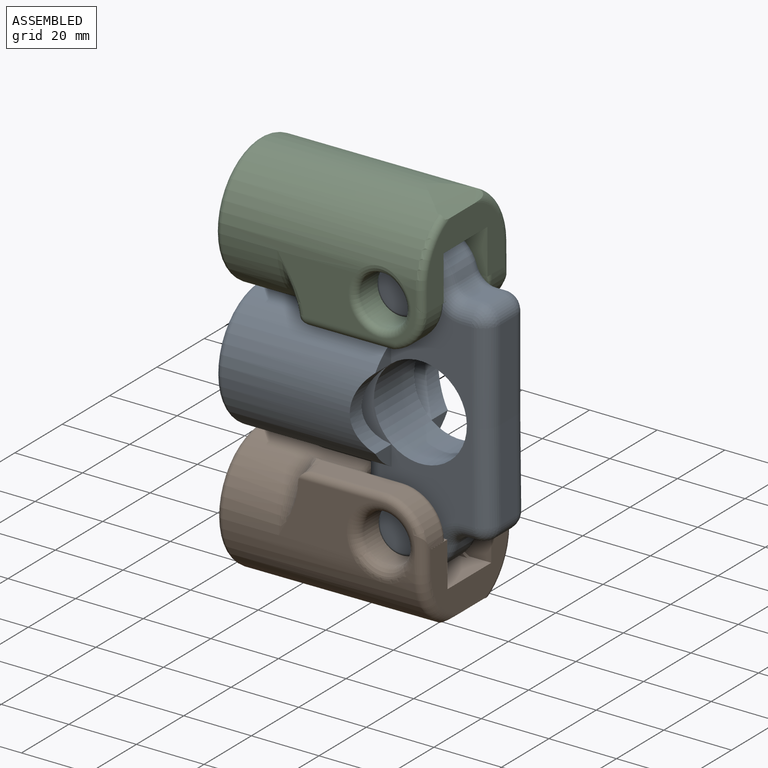
[diagram: assembled view]
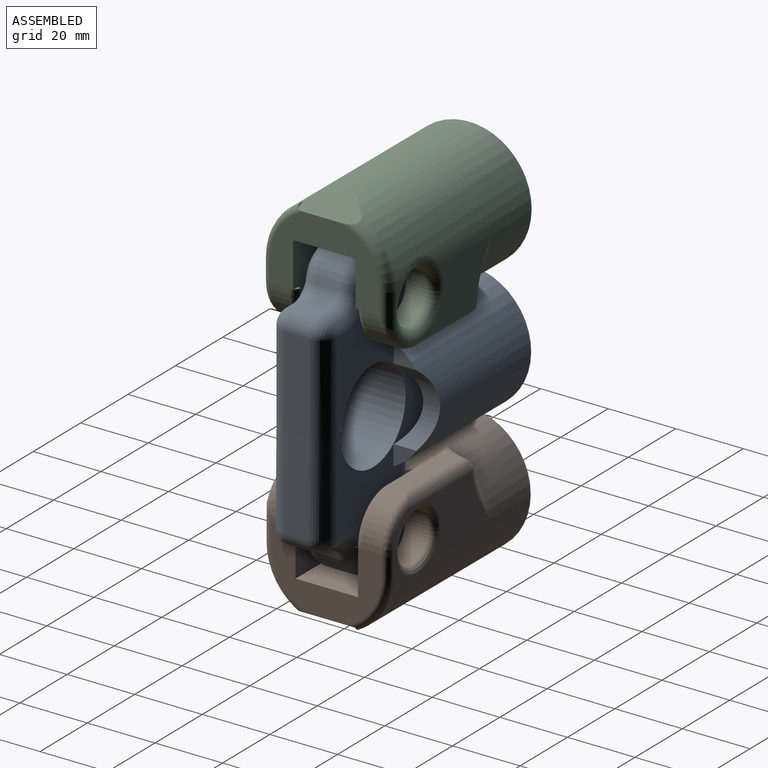
[diagram: assembled view, second angle]
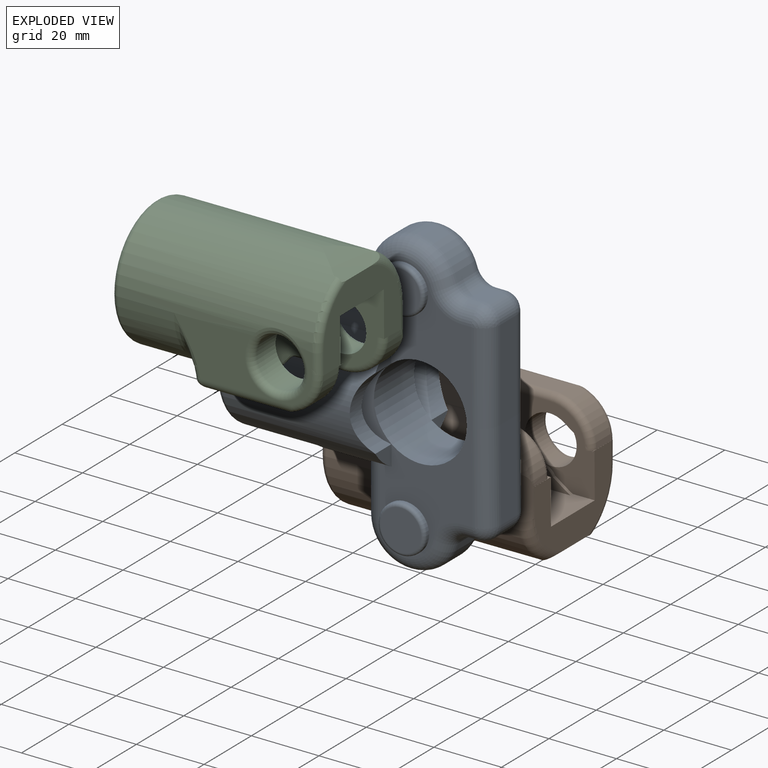
[diagram: exploded view]
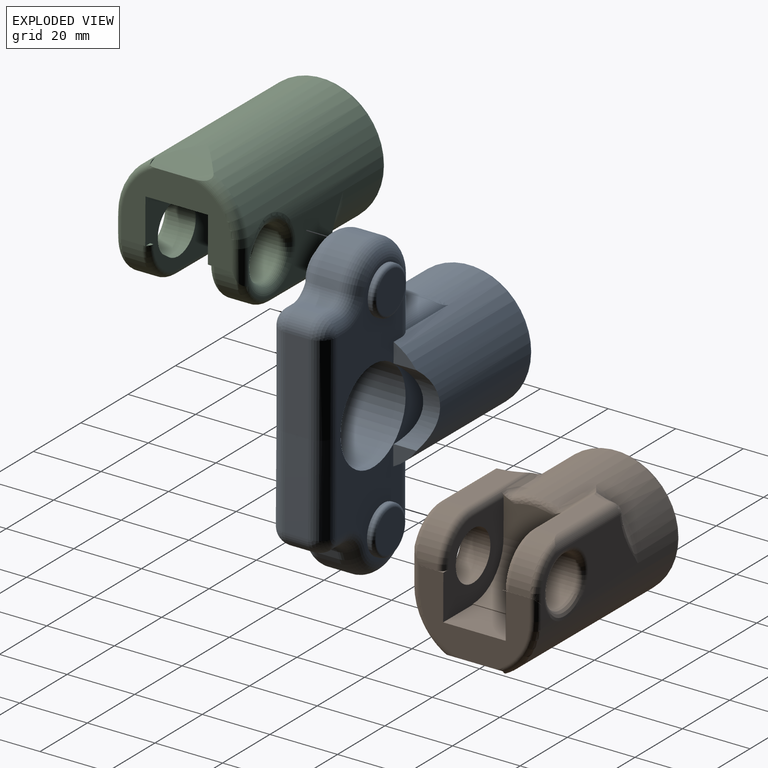
[diagram: exploded view, second angle]
ASSEMBLY  parts=3 mates=2
PART A: 77 faces, bbox 73.9x91.1x40.4 mm
  f0: plane 78.99x37.63mm, normal (0,0,-1), area 1105.5mm2, adj f3,f9,f26,f29,f31,f32,f33,f34
  f1: plane 78.99x37.63mm, normal (0,0,1), area 1105.5mm2, adj f2,f9,f13,f17,f20,f21,f22,f23
  f2: plane 6.71x5.77mm, normal (1,0,0), area 22.5mm2, adj f1,f9,f68
  f3: plane 6.71x5.77mm, normal (1,0,0), area 22.5mm2, adj f0,f9,f68
  f4: cylinder r=12.55mm len=24.63mm, axis (0,0,-1), area 248.1mm2, adj f5,f19,f22,f33
  f5: plane 12.58x6.9mm, normal (-1,0,0), area 86.8mm2, adj f4,f6,f23,f34
  f6: plane 6.9x0.3mm, normal (-1,0,0), area 2.1mm2, adj f5,f7,f25,f36
  f7: plane 11.94x6.96mm, normal (0,1,0), area 82mm2, adj f6,f24,f35,f76
  f8: cylinder r=13.75mm len=21.34mm, axis (0,0,-1), area 83.1mm2, adj f9,f67,f68,f71
  f9: cylinder r=13.75mm len=30.52mm, axis (0,0,-1), area 1463mm2, adj f0,f1,f2,f3,f8,f10,f68
  f10: cylinder r=13.75mm len=21.34mm, axis (0,0,-1), area 83.1mm2, adj f9,f67,f68,f70
  f11: plane 26.7x6.9mm, normal (1,-0.01,0), area 184.3mm2, adj f16,f17,f29,f41
  f12: plane 6.9x3mm, normal (0.01,1,0), area 20.7mm2, adj f16,f19,f20,f31
  f13: cylinder r=7mm len=14mm, axis (0,0,-1), area 44mm2, adj f1,f15
  f14: plane 12x12mm, normal (0,0,1), area 113.1mm2, adj f15
  f15: torus R=6mm, axis (0,0,1), area 65.5mm2, adj f13,f14
  f16: cylinder r=5mm len=6.9mm, axis (0,0,1), area 54.2mm2, adj f11,f12,f18,f30
  f17: cylinder r=5mm len=26.76mm, axis (-0.01,-1,0), area 209.8mm2, adj f1,f11,f18,f47
  f18: sphere r=5mm, area 39.3mm2, adj f16,f17,f20
  f19: cylinder r=5mm len=6.9mm, axis (0,0,-1), area 44.4mm2, adj f4,f12,f21,f32
  f20: cylinder r=5mm len=5.02mm, axis (1,-0.01,0), area 23.5mm2, adj f1,f12,f18,f21
  f21: torus R=10mm, axis (0,0,1), area 69mm2, adj f1,f19,f20,f22
  f22: torus R=7.55mm, axis (0,0,1), area 241.5mm2, adj f1,f4,f21,f23
  f23: cylinder r=5mm len=12.59mm, axis (0,1,0), area 98.8mm2, adj f1,f5,f22,f25
  f24: cylinder r=5mm len=17.74mm, axis (1,0,0), area 63.8mm2, adj f7,f25,f68,f76
  f25: cylinder r=5mm len=5mm, axis (0,1,0), area 12.2mm2, adj f1,f6,f23,f24,f68
  f26: cylinder r=7mm len=14mm, axis (0,0,1), area 44mm2, adj f0,f28
  f27: plane 12x12mm, normal (0,0,-1), area 113.1mm2, adj f28
  f28: torus R=6mm, axis (0,0,-1), area 65.5mm2, adj f26,f27
  f29: cylinder r=5mm len=26.76mm, axis (-0.01,-1,0), area 209.8mm2, adj f0,f11,f30,f59
  f30: sphere r=5mm, area 39.3mm2, adj f16,f29,f31
  f31: cylinder r=5mm len=5.02mm, axis (1,-0.01,0), area 23.5mm2, adj f0,f12,f30,f32
  f32: torus R=10mm, axis (0,0,-1), area 69mm2, adj f0,f19,f31,f33
  f33: torus R=7.55mm, axis (0,0,-1), area 241.5mm2, adj f0,f4,f32,f34
  f34: cylinder r=5mm len=12.59mm, axis (0,1,0), area 98.8mm2, adj f0,f5,f33,f36
  f35: cylinder r=5mm len=17.74mm, axis (1,0,0), area 63.8mm2, adj f7,f36,f68,f76
  f36: cylinder r=5mm len=5mm, axis (0,1,0), area 12.2mm2, adj f0,f6,f34,f35,f68
  f37: cylinder r=12.55mm len=24.63mm, axis (0,0,-1), area 248.1mm2, adj f38,f49,f52,f63
  f38: plane 12.58x6.9mm, normal (-1,0,0), area 86.8mm2, adj f37,f39,f53,f64
  f39: plane 6.9x0.3mm, normal (-1,0,0), area 2.1mm2, adj f38,f40,f55,f66
  f40: plane 11.94x6.96mm, normal (0,-1,0), area 82mm2, adj f39,f54,f65,f75
  f41: plane 26.7x6.9mm, normal (1,0.01,0), area 184.3mm2, adj f11,f46,f47,f59
  f42: plane 6.9x3mm, normal (0.01,-1,0), area 20.7mm2, adj f46,f49,f50,f61
  f43: cylinder r=7mm len=14mm, axis (0,0,-1), area 44mm2, adj f1,f45
  f44: plane 12x12mm, normal (0,0,1), area 113.1mm2, adj f45
  f45: torus R=6mm, axis (0,0,1), area 65.5mm2, adj f43,f44
  f46: cylinder r=5mm len=6.9mm, axis (0,0,1), area 54.2mm2, adj f41,f42,f48,f60
  f47: cylinder r=5mm len=26.76mm, axis (-0.01,1,0), area 209.8mm2, adj f1,f17,f41,f48
  f48: sphere r=5mm, area 39.3mm2, adj f46,f47,f50
  f49: cylinder r=5mm len=6.9mm, axis (0,0,-1), area 44.4mm2, adj f37,f42,f51,f62
  f50: cylinder r=5mm len=5.02mm, axis (1,0.01,0), area 23.5mm2, adj f1,f42,f48,f51
  f51: torus R=10mm, axis (0,0,1), area 69mm2, adj f1,f49,f50,f52
  f52: torus R=7.55mm, axis (0,0,1), area 241.5mm2, adj f1,f37,f51,f53
  f53: cylinder r=5mm len=12.59mm, axis (0,-1,0), area 98.8mm2, adj f1,f38,f52,f55
  f54: cylinder r=5mm len=18.36mm, axis (1,0,0), area 72.1mm2, adj f40,f55,f68,f75
  f55: cylinder r=5mm len=5mm, axis (0,-1,0), area 13mm2, adj f1,f39,f53,f54,f68
  f56: cylinder r=7mm len=14mm, axis (0,0,1), area 44mm2, adj f0,f58
  f57: plane 12x12mm, normal (0,0,-1), area 113.1mm2, adj f58
  f58: torus R=6mm, axis (0,0,-1), area 65.5mm2, adj f56,f57
  f59: cylinder r=5mm len=26.76mm, axis (-0.01,1,0), area 209.8mm2, adj f0,f29,f41,f60
  f60: sphere r=5mm, area 39.3mm2, adj f46,f59,f61
  f61: cylinder r=5mm len=5.02mm, axis (1,0.01,0), area 23.5mm2, adj f0,f42,f60,f62
  f62: torus R=10mm, axis (0,0,-1), area 69mm2, adj f0,f49,f61,f63
  f63: torus R=7.55mm, axis (0,0,-1), area 241.5mm2, adj f0,f37,f62,f64
  f64: cylinder r=5mm len=12.59mm, axis (0,-1,0), area 98.8mm2, adj f0,f38,f63,f66
  f65: cylinder r=5mm len=18.36mm, axis (1,0,0), area 72.1mm2, adj f40,f66,f68,f75
  f66: cylinder r=5mm len=5mm, axis (0,-1,0), area 13mm2, adj f0,f39,f64,f65,f68
  f67: cylinder r=13.65mm len=43mm, axis (1,0,0), area 3017.3mm2, adj f0,f1,f8,f10,f70,f71,f72,f73
  f68: cylinder r=18.65mm len=43mm, axis (1,0,0), area 4144.2mm2, adj f0,f1,f2,f3,f8,f9,f10,f24
  f69: plane 33.3x33.3mm, normal (-1,0,0), area 101.5mm2, adj f73,f74
  f70: plane 6.88x6.01mm, normal (1,0,0), area 24.1mm2, adj f1,f10,f67,f68
  f71: plane 6.88x6.01mm, normal (1,0,0), area 24.1mm2, adj f0,f8,f67,f68
  f72: plane 27.3x16.9mm, normal (-1,0,0), area 429.9mm2, adj f0,f1,f67
  f73: torus R=15.65mm, axis (-1,0,0), area 283.8mm2, adj f67,f69
  f74: torus R=16.65mm, axis (-1,0,0), area 353.8mm2, adj f68,f69
  f75: bspline ~20.72x4.55mm, area 35.1mm2, adj f40,f54,f65,f68
  f76: bspline ~20.04x4.35mm, area 28.3mm2, adj f7,f24,f35,f68
PART B: 71 faces, bbox 63.7x46.5x54.3 mm
  f0: cylinder r=7.3mm len=14.6mm, axis (0,0,-1), area 344mm2, adj f4,f36,f37,f65,f66,f70
  f1: plane 32.5x21.61mm, normal (1,0,0), area 366.5mm2, adj f2,f3,f9,f16,f17,f25,f43,f44
  f2: plane 8x0.3mm, normal (-0.01,-1,0), area 0.4mm2, adj f1,f3,f14,f32,f42,f62,f70
  f3: plane 0.1x0.07mm, normal (0,0,-1), area 0mm2, adj f1,f2,f62
  f4: plane 23.66x23.28mm, normal (0,0,-1), area 228.2mm2, adj f0,f16,f18,f20,f21,f22,f23,f24
  f5: plane 2.31x1.27mm, normal (0,0,-1), area 1.3mm2, adj f10,f56,f57
  f6: cylinder r=7.3mm len=14.6mm, axis (0,0,-1), area 321.1mm2, adj f17,f57,f58
  f7: cylinder r=12.55mm len=12.52mm, axis (0,0,-1), area 116.6mm2, adj f8,f9,f34,f38,f56
  f8: plane 12.55x6mm, normal (0,-1,0), area 75.3mm2, adj f7,f29,f35,f39
  f9: plane 7.41x2.04mm, normal (-0.01,-1,0), area 1.1mm2, adj f1,f7,f17,f34,f56
  f10: cylinder r=18.75mm len=57.45mm, axis (1,0,0), area 4350.6mm2, adj f5,f11,f12,f25,f26,f30,f31,f37
  f11: plane 40.89x15.68mm, normal (0,0,1), area 312.4mm2, adj f10,f36,f40,f41,f42,f43,f51
  f12: plane 39.92x16.73mm, normal (0,0,-1), area 303.9mm2, adj f10,f30,f38,f39,f53,f56,f57
  f13: plane 33.5x33.5mm, normal (-1,0,0), area 102.1mm2, adj f60,f61
  f14: cylinder r=12.55mm len=12.52mm, axis (0,0,-1), area 116.5mm2, adj f2,f15,f32,f41,f51
  f15: plane 12.55x5.41mm, normal (0,-1,0), area 66.2mm2, adj f14,f28,f33,f51
  f16: plane 18.5x12.55mm, normal (0,-1,0), area 226.1mm2, adj f1,f4,f17,f18,f69,f70
  f17: plane 25.43x23.66mm, normal (0,0,1), area 350.2mm2, adj f1,f6,f9,f16,f18,f20,f21,f22
  f18: plane 17.5x0.22mm, normal (1,0,0), area 3.9mm2, adj f4,f16,f17,f24
  f19: cylinder r=13.75mm len=27.5mm, axis (-1,0,0), area 2073.5mm2, adj f59,f60
  f20: cylinder r=12.85mm len=17.5mm, axis (0,0,-1), area 354.5mm2, adj f4,f17,f21,f24
  f21: plane 19.79x13.11mm, normal (1,0,0), area 183mm2, adj f4,f17,f20,f33,f35,f45,f46,f52
  f22: cylinder r=12.55mm len=17.5mm, axis (0,0,-1), area 0.9mm2, adj f4,f17,f23
  f23: plane 17.5x0.05mm, normal (1,0,0), area 0.9mm2, adj f4,f17,f22
  f24: plane 17.5x0mm, normal (0,-1,0), area 0mm2, adj f4,f17,f18,f20
  f25: cylinder r=24.85mm len=17.5mm, axis (0,0,-1), area 137.4mm2, adj f1,f10,f26,f44,f55
  f26: plane 2.34x1.31mm, normal (0,0,-1), area 0.5mm2, adj f10,f25,f44
  f27: plane 23.5x23.5mm, normal (-1,0,0), area 433.7mm2, adj f59
  f28: plane 11.11x5.32mm, normal (0,-1,0), area 52.4mm2, adj f15,f33,f48,f51
  f29: plane 11.11x6.61mm, normal (0,-1,0), area 63.4mm2, adj f8,f35,f39,f53
  f30: torus R=24.54mm, axis (1,0,0), area 108.6mm2, adj f10,f12,f53,f54
  f31: torus R=24.54mm, axis (1,0,0), area 95.5mm2, adj f10,f40,f47,f48,f50
  f32: torus R=10.55mm, axis (0,0,1), area 57.7mm2, adj f2,f4,f14,f33,f63,f64
  f33: cylinder r=2mm len=26.01mm, axis (1,0,0), area 55.2mm2, adj f4,f15,f21,f28,f32,f46,f47,f48
  f34: torus R=10.55mm, axis (0,0,1), area 57.7mm2, adj f7,f9,f17,f35
  f35: cylinder r=2mm len=26.01mm, axis (-1,0,0), area 55.2mm2, adj f8,f17,f21,f29,f34,f52,f53,f54
  f36: torus R=9.3mm, axis (0,0,-1), area 115.3mm2, adj f0,f11,f37
  f37: bspline ~16.26x6.26mm, area 47mm2, adj f0,f10,f36
  f38: torus R=10.55mm, axis (0,0,-1), area 47.5mm2, adj f7,f12,f39,f56
  f39: cylinder r=2mm len=24.37mm, axis (-1,0,0), area 70.2mm2, adj f8,f12,f29,f38,f53
  f40: bspline ~17.21x7.77mm, area 16.6mm2, adj f11,f31,f50
  f41: torus R=10.55mm, axis (0,0,-1), area 50.6mm2, adj f11,f14,f42,f51
  f42: cylinder r=2mm len=2.21mm, axis (1,-0.01,0), area 0.2mm2, adj f2,f11,f41,f43
  f43: cylinder r=2mm len=6.27mm, axis (0,1,0), area 16.5mm2, adj f1,f11,f42,f44
  f44: torus R=16.75mm, axis (1,0,0), area 61.4mm2, adj f1,f10,f25,f26,f43
  f45: bspline ~12.84x2.93mm, area 36.6mm2, adj f10,f21,f46,f52
  f46: bspline ~5.83x3.94mm, area 9.5mm2, adj f21,f33,f45,f47
  f47: bspline ~43.34x3.06mm, area 42.8mm2, adj f10,f31,f33,f46,f48
  f48: bspline ~10.87x5.47mm, area 24.6mm2, adj f28,f31,f33,f47,f49
  f49: bspline ~2.99x2.82mm, area 5.2mm2, adj f48,f50,f51
  f50: bspline ~2.02x1.83mm, area 0.8mm2, adj f31,f40,f49,f51
  f51: cylinder r=3mm len=27.11mm, axis (1,0,0), area 115.5mm2, adj f11,f14,f15,f28,f41,f49,f50
  f52: bspline ~5.82x3.94mm, area 9.5mm2, adj f21,f35,f45,f54
  f53: bspline ~12.74x5.73mm, area 31.9mm2, adj f12,f29,f30,f35,f39,f54
  f54: bspline ~41.84x3.05mm, area 42.8mm2, adj f10,f30,f35,f52,f53
  f55: torus R=15.75mm, axis (1,0,0), area 93.8mm2, adj f1,f10,f25,f56
  f56: cylinder r=3mm len=10.52mm, axis (0,-1,0), area 41mm2, adj f1,f5,f7,f9,f12,f38,f55,f57
  f57: torus R=10.3mm, axis (0,0,-1), area 172.4mm2, adj f5,f6,f12,f56,f58
  f58: bspline ~18.69x8.28mm, area 83.7mm2, adj f6,f10,f57
  f59: torus R=11.75mm, axis (-1,0,0), area 257.1mm2, adj f19,f27
  f60: torus R=15.75mm, axis (1,0,0), area 285.8mm2, adj f13,f19
  f61: torus R=16.75mm, axis (1,0,0), area 355.8mm2, adj f10,f13
  f62: plane 1x0.1mm, normal (-0.57,0.82,0), area 0.1mm2, adj f1,f2,f3,f70
  f63: plane 1.74x1.01mm, normal (0.01,1,0), area 1.2mm2, adj f32,f64,f70
  f64: cylinder r=10.55mm len=1.45mm, axis (0,0,-1), area 1.5mm2, adj f32,f63,f65,f70
  f65: plane 6.24x4.37mm, normal (-0.57,0.82,0), area 7.6mm2, adj f0,f4,f64,f70
  f66: plane 1.42x1mm, normal (0.57,-0.82,0), area 1.7mm2, adj f0,f4,f67,f70
  f67: cylinder r=5.08mm len=3.71mm, axis (0,0,-1), area 4.7mm2, adj f4,f66,f68,f70
  f68: plane 3.83x2.68mm, normal (0.57,-0.82,0), area 4.7mm2, adj f4,f67,f69,f70
  f69: cylinder r=14.6mm len=1.31mm, axis (0,0,-1), area 1.5mm2, adj f4,f16,f68,f70
  f70: plane 19.06x16.77mm, normal (0,0,-1), area 122mm2, adj f0,f1,f2,f16,f62,f63,f64,f65
PART C: same geometry as B
PLACE A rot(axis=(-1,0,0),90deg) t=(-24.47,0,-34.97)mm
PLACE B rot(axis=(-1,0,0),90deg) t=(-24.47,0,-34.97)mm
PLACE C rot(axis=(1,0,0),90deg) t=(-24.84,0,34.71)mm
MATE revolute C.f0 <-> A.f37  axis (0,1,0) through (-24.85,0,31.81)mm
MATE revolute B.f0 <-> A.f4  axis (0,-1,0) through (-24.51,0,-32.07)mm
